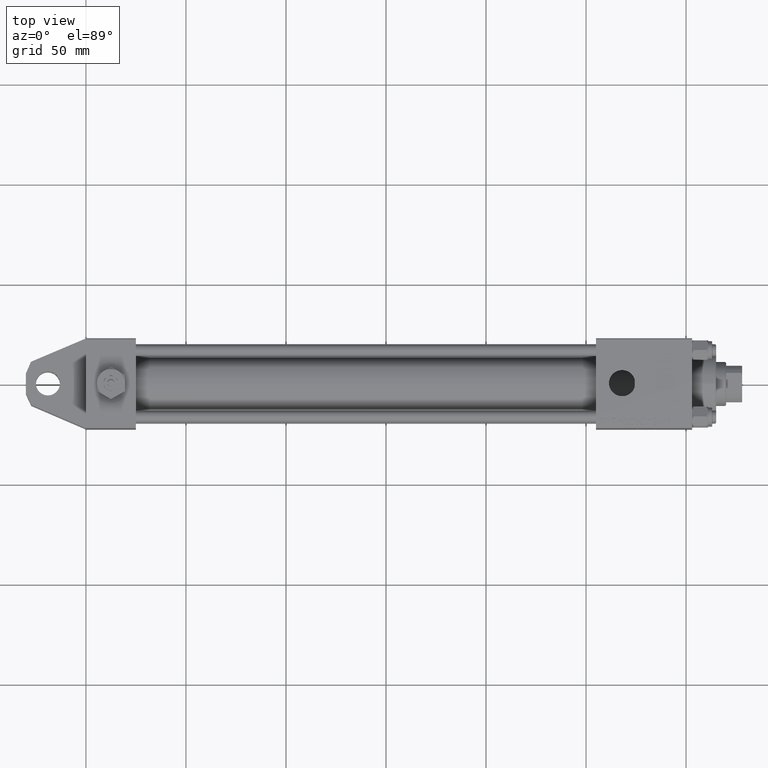
[diagram: clean part render]
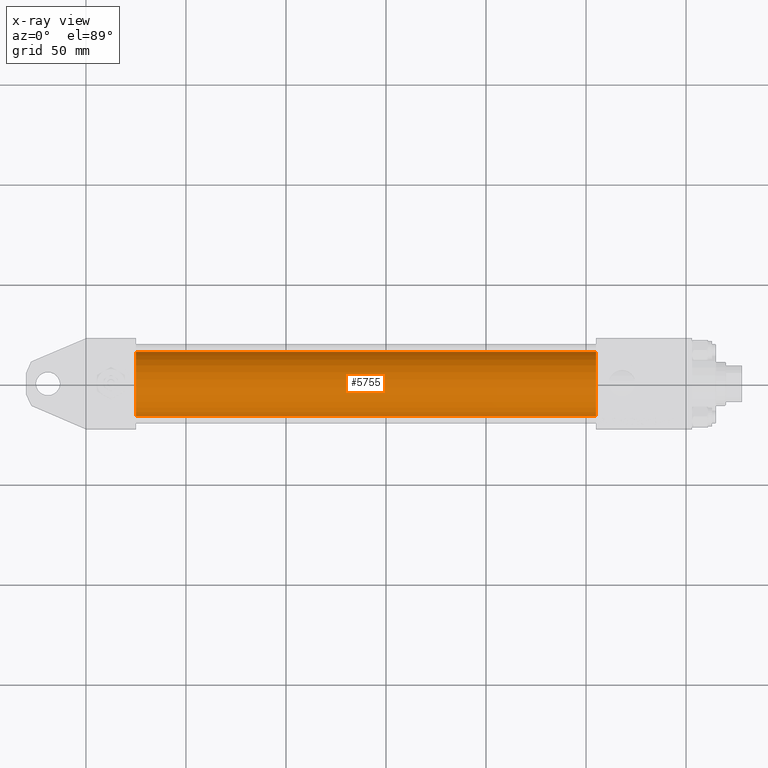
[diagram: x-ray — body ghosted, one internal face saturated and labeled with its STEP entity id]
A machine part, top view, then the same camera in x-ray: the body is ghosted and one INTERNAL B-rep face — a face not visible from any outside direction — is saturated and labeled: STEP entity #5755.
In plain terms, the highlighted cylindrical surface (edge-blend (fillet) strip) has radius 16 mm, axis along (-1, -0, 0).
Its self-contained STEP definition (entity closure, byte-faithful):
#1099 = DIRECTION ( 'NONE',  ( 1.000000000000000000, 0.000000000000000000, 0.000000000000000000 ) ) ;
#1244 = VERTEX_POINT ( 'NONE', #19284 ) ;
#5755 = ADVANCED_FACE ( 'NONE', ( #17667 ), #33625, .F. ) ;
#5875 = EDGE_LOOP ( 'NONE', ( #38463, #15736, #26953, #8547 ) ) ;
#7202 = DIRECTION ( 'NONE',  ( 0.000000000000000000, 0.000000000000000000, 1.000000000000000000 ) ) ;
#8547 = ORIENTED_EDGE ( 'NONE', *, *, #51277, .F. ) ;
#11257 = LINE ( 'NONE', #19862, #39347 ) ;
#11897 = DIRECTION ( 'NONE',  ( 1.000000000000000000, 0.000000000000000000, 0.000000000000000000 ) ) ;
#12027 = DIRECTION ( 'NONE',  ( -1.000000000000000000, -0.000000000000000000, -0.000000000000000000 ) ) ;
#15079 = DIRECTION ( 'NONE',  ( -1.000000000000000000, -0.000000000000000000, -0.000000000000000000 ) ) ;
#15573 = EDGE_CURVE ( 'NONE', #1244, #23438, #11257, .T. ) ;
#15736 = ORIENTED_EDGE ( 'NONE', *, *, #15573, .T. ) ;
#17667 = FACE_OUTER_BOUND ( 'NONE', #5875, .T. ) ;
#18472 = CARTESIAN_POINT ( 'NONE',  ( 255.0000000000000000, -3.469446951953614189E-15, 16.00000000000000000 ) ) ;
#18668 = CARTESIAN_POINT ( 'NONE',  ( 25.00000000000000000, -1.510012073317849255E-15, -16.00000000000000000 ) ) ;
#19284 = CARTESIAN_POINT ( 'NONE',  ( 255.0000000000000000, -1.510012073317849255E-15, -16.00000000000000000 ) ) ;
#19369 = AXIS2_PLACEMENT_3D ( 'NONE', #44002, #1099, #20720 ) ;
#19729 = CARTESIAN_POINT ( 'NONE',  ( 25.00000000000000000, -3.469446951953614189E-15, 0.000000000000000000 ) ) ;
#19862 = CARTESIAN_POINT ( 'NONE',  ( 255.0000000000000000, -1.510012073317849255E-15, -16.00000000000000000 ) ) ;
#20720 = DIRECTION ( 'NONE',  ( 0.000000000000000000, 0.000000000000000000, -1.000000000000000000 ) ) ;
#22051 = EDGE_CURVE ( 'NONE', #43728, #1244, #38593, .T. ) ;
#22222 = CARTESIAN_POINT ( 'NONE',  ( 255.0000000000000000, -3.469446951953614189E-15, 16.00000000000000000 ) ) ;
#23281 = CIRCLE ( 'NONE', #33305, 16.00000000000000000 ) ;
#23438 = VERTEX_POINT ( 'NONE', #18668 ) ;
#23664 = DIRECTION ( 'NONE',  ( 0.000000000000000000, 0.000000000000000000, -1.000000000000000000 ) ) ;
#24195 = VECTOR ( 'NONE', #46417, 1000.000000000000000 ) ;
#25768 = CARTESIAN_POINT ( 'NONE',  ( 255.0000000000000000, -3.469446951953614189E-15, 0.000000000000000000 ) ) ;
#26953 = ORIENTED_EDGE ( 'NONE', *, *, #45184, .F. ) ;
#31774 = CARTESIAN_POINT ( 'NONE',  ( 25.00000000000000000, -3.469446951953614189E-15, 16.00000000000000000 ) ) ;
#33305 = AXIS2_PLACEMENT_3D ( 'NONE', #19729, #11897, #23664 ) ;
#33625 = CYLINDRICAL_SURFACE ( 'NONE', #39065, 16.00000000000000000 ) ;
#38463 = ORIENTED_EDGE ( 'NONE', *, *, #22051, .T. ) ;
#38593 = CIRCLE ( 'NONE', #19369, 16.00000000000000000 ) ;
#39065 = AXIS2_PLACEMENT_3D ( 'NONE', #25768, #15079, #7202 ) ;
#39347 = VECTOR ( 'NONE', #12027, 1000.000000000000000 ) ;
#43038 = LINE ( 'NONE', #18472, #24195 ) ;
#43728 = VERTEX_POINT ( 'NONE', #22222 ) ;
#44002 = CARTESIAN_POINT ( 'NONE',  ( 255.0000000000000000, -3.469446951953614189E-15, 0.000000000000000000 ) ) ;
#45184 = EDGE_CURVE ( 'NONE', #45916, #23438, #23281, .T. ) ;
#45916 = VERTEX_POINT ( 'NONE', #31774 ) ;
#46417 = DIRECTION ( 'NONE',  ( -1.000000000000000000, -0.000000000000000000, -0.000000000000000000 ) ) ;
#51277 = EDGE_CURVE ( 'NONE', #43728, #45916, #43038, .T. ) ;